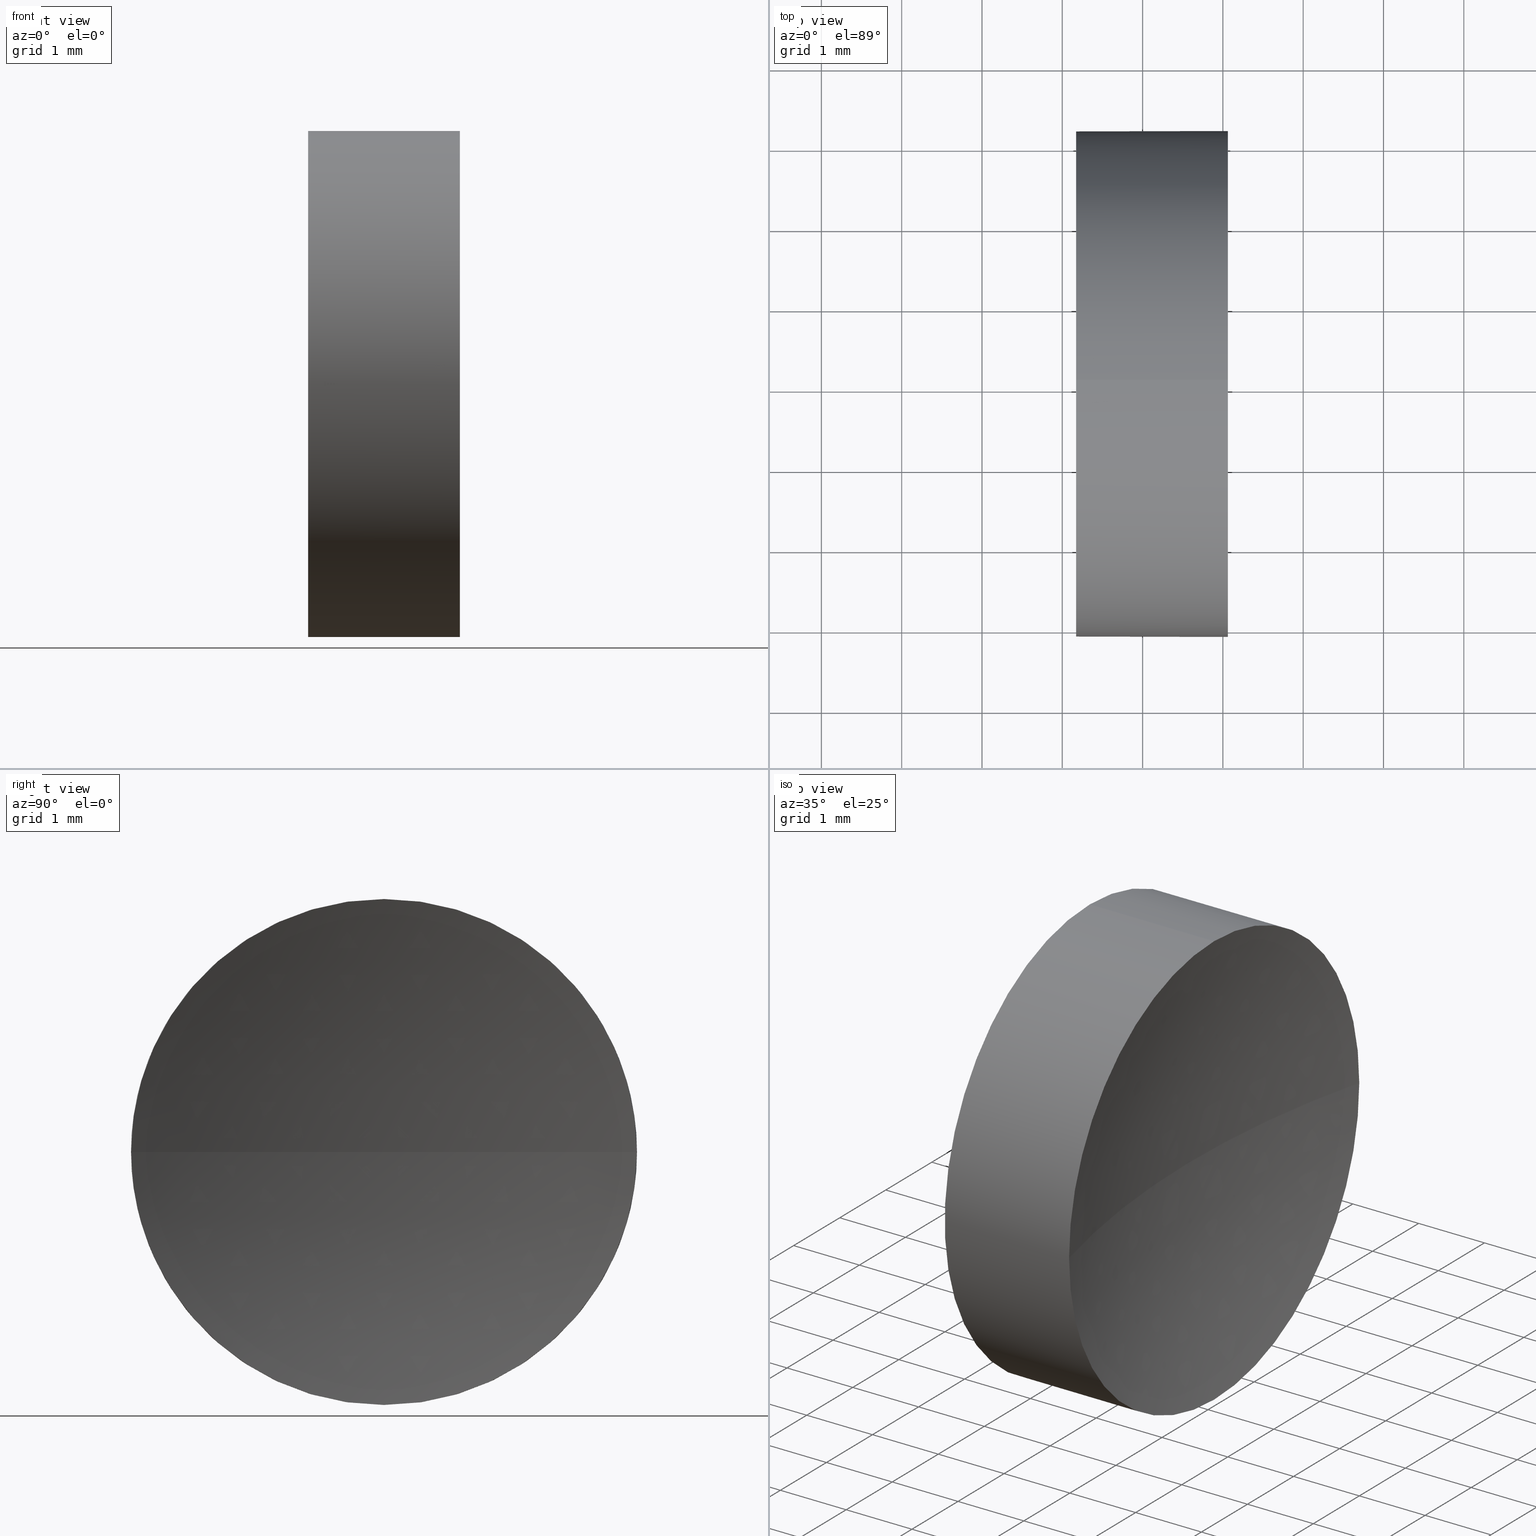
[diagram: canonical four-view strip — front | top / right | iso, engineering-drawing reading convention]
A machine part, canonical four-view strip (front | top / right | iso — engineering-drawing reading convention). The complete STEP part file that produces these views, byte-faithful:
ISO-10303-21;
HEADER;
FILE_DESCRIPTION (( 'STEP AP214' ),
    '1' );
FILE_NAME ('120008.STEP',
    '2019-06-14T03:14:25',
    ( '' ),
    ( '' ),
    'SwSTEP 2.0',
    'SolidWorks 2016',
    '' );
FILE_SCHEMA (( 'AUTOMOTIVE_DESIGN' ));
ENDSEC;

DATA;
#1 = DIRECTION ( 'NONE',  ( 0.0000000000000000000, 0.0000000000000000000, 1.000000000000000000 ) ) ;
#2 = COLOUR_RGB ( '',1.000000000000000000, 1.000000000000000000, 1.000000000000000000 ) ;
#3 = PRODUCT_RELATED_PRODUCT_CATEGORY ( 'part', '', ( #141 ) ) ;
#4 = EDGE_CURVE ( 'NONE', #68, #25, #99, .T. ) ;
#5 = EDGE_LOOP ( 'NONE', ( #165, #154 ) ) ;
#6 = ORIENTED_EDGE ( 'NONE', *, *, #122, .T. ) ;
#7 = STYLED_ITEM ( 'NONE', ( #16 ), #113 ) ;
#8 = EDGE_CURVE ( 'NONE', #166, #110, #151, .T. ) ;
#9 = EDGE_LOOP ( 'NONE', ( #155, #121, #6, #177, #66 ) ) ;
#10 = CARTESIAN_POINT ( 'NONE',  ( 22.17218947520228100, 13.04452057459747900, 0.0000000000000000000 ) ) ;
#11 = DIRECTION ( 'NONE',  ( 0.0000000000000000000, 0.0000000000000000000, 1.000000000000000000 ) ) ;
#12 = ORIENTED_EDGE ( 'NONE', *, *, #59, .T. ) ;
#13 = ADVANCED_FACE ( 'NONE', ( #70 ), #54, .T. ) ;
#14 = MECHANICAL_DESIGN_GEOMETRIC_PRESENTATION_REPRESENTATION (  '', ( #7 ), #98 ) ;
#15 = AXIS2_PLACEMENT_3D ( 'NONE', #44, #173, #45 ) ;
#16 = PRESENTATION_STYLE_ASSIGNMENT (( #38 ) ) ;
#17 = DIRECTION ( 'NONE',  ( 0.0000000000000000000, 0.0000000000000000000, 1.000000000000000000 ) ) ;
#18 = CIRCLE ( 'NONE', #72, 3.150000000000001700 ) ;
#19 = CARTESIAN_POINT ( 'NONE',  ( 24.06218947520228100, 13.04452057459747900, -3.150000000000001700 ) ) ;
#20 = CARTESIAN_POINT ( 'NONE',  ( 22.17218947520228100, 13.04452057459747900, -3.150000000000001700 ) ) ;
#21 = CARTESIAN_POINT ( 'NONE',  ( 24.06218947520228100, 13.04452057459747900, 0.0000000000000000000 ) ) ;
#22 =( NAMED_UNIT ( * ) SI_UNIT ( $, .STERADIAN. ) SOLID_ANGLE_UNIT ( ) );
#23 = ADVANCED_BREP_SHAPE_REPRESENTATION ( '120008', ( #113, #167 ), #51 ) ;
#24 = CIRCLE ( 'NONE', #26, 3.150000000000001700 ) ;
#25 = VERTEX_POINT ( 'NONE', #170 ) ;
#26 = AXIS2_PLACEMENT_3D ( 'NONE', #21, #82, #146 ) ;
#27 = ORIENTED_EDGE ( 'NONE', *, *, #4, .F. ) ;
#28 = CYLINDRICAL_SURFACE ( 'NONE', #150, 3.150000000000001700 ) ;
#29 = FACE_OUTER_BOUND ( 'NONE', #5, .T. ) ;
#30 = CIRCLE ( 'NONE', #15, 3.150000000000001700 ) ;
#31 = DIRECTION ( 'NONE',  ( -1.000000000000000000, -0.0000000000000000000, -0.0000000000000000000 ) ) ;
#32 = MECHANICAL_DESIGN_GEOMETRIC_PRESENTATION_REPRESENTATION (  '', ( #153 ), #128 ) ;
#33 = PRODUCT_CONTEXT ( 'NONE', #139, 'mechanical' ) ;
#34 = EDGE_CURVE ( 'NONE', #110, #85, #30, .T. ) ;
#35 = ORIENTED_EDGE ( 'NONE', *, *, #129, .F. ) ;
#36 = FILL_AREA_STYLE ('',( #126 ) ) ;
#37 = APPLICATION_PROTOCOL_DEFINITION ( 'draft international standard', 'automotive_design', 1998, #139 ) ;
#38 = SURFACE_STYLE_USAGE ( .BOTH. , #143 ) ;
#39 = CARTESIAN_POINT ( 'NONE',  ( 24.06218947520228100, 13.04452057459747900, 0.0000000000000000000 ) ) ;
#40 = ORIENTED_EDGE ( 'NONE', *, *, #8, .F. ) ;
#41 = ORIENTED_EDGE ( 'NONE', *, *, #4, .T. ) ;
#42 = FACE_OUTER_BOUND ( 'NONE', #178, .T. ) ;
#43 = DIRECTION ( 'NONE',  ( -1.000000000000000000, -0.0000000000000000000, -0.0000000000000000000 ) ) ;
#44 = CARTESIAN_POINT ( 'NONE',  ( 22.17218947520228100, 13.04452057459747900, 0.0000000000000000000 ) ) ;
#45 = DIRECTION ( 'NONE',  ( 0.0000000000000000000, 0.0000000000000000000, 1.000000000000000000 ) ) ;
#46 = PLANE ( 'NONE',  #64 ) ;
#47 = APPLICATION_CONTEXT ( 'automotive_design' ) ;
#48 = CARTESIAN_POINT ( 'NONE',  ( 24.06218947520228100, 13.04452057459747900, 0.0000000000000000000 ) ) ;
#49 = DIRECTION ( 'NONE',  ( 0.0000000000000000000, 0.0000000000000000000, 1.000000000000000000 ) ) ;
#50 = PRESENTATION_STYLE_ASSIGNMENT (( #123 ) ) ;
#51 =( GEOMETRIC_REPRESENTATION_CONTEXT ( 3 ) GLOBAL_UNCERTAINTY_ASSIGNED_CONTEXT ( ( #74 ) ) GLOBAL_UNIT_ASSIGNED_CONTEXT ( ( #94, #120, #22 ) ) REPRESENTATION_CONTEXT ( 'NONE', 'WORKASPACE' ) );
#52 = EDGE_CURVE ( 'NONE', #85, #110, #18, .T. ) ;
#53 = CIRCLE ( 'NONE', #71, 12.91615384615382700 ) ;
#54 = CYLINDRICAL_SURFACE ( 'NONE', #168, 3.150000000000001700 ) ;
#55 = FACE_OUTER_BOUND ( 'NONE', #114, .T. ) ;
#56 = UNCERTAINTY_MEASURE_WITH_UNIT (LENGTH_MEASURE( 1.000000000000000100E-005 ), #140, 'distance_accuracy_value', 'NONE');
#57 = VERTEX_POINT ( 'NONE', #19 ) ;
#58 =( NAMED_UNIT ( * ) SI_UNIT ( $, .STERADIAN. ) SOLID_ANGLE_UNIT ( ) );
#59 = EDGE_CURVE ( 'NONE', #57, #85, #62, .T. ) ;
#60 = DIRECTION ( 'NONE',  ( -1.000000000000000000, 0.0000000000000000000, 0.0000000000000000000 ) ) ;
#61 = FILL_AREA_STYLE_COLOUR ( '', #2 ) ;
#62 = LINE ( 'NONE', #135, #142 ) ;
#63 = DIRECTION ( 'NONE',  ( 0.0000000000000000000, 0.0000000000000000000, 1.000000000000000000 ) ) ;
#64 = AXIS2_PLACEMENT_3D ( 'NONE', #10, #186, #163 ) ;
#65 = CARTESIAN_POINT ( 'NONE',  ( 24.06218947520228100, 9.894520574597482500, 0.0000000000000000000 ) ) ;
#66 = ORIENTED_EDGE ( 'NONE', *, *, #52, .F. ) ;
#67 = ADVANCED_FACE ( 'NONE', ( #55 ), #134, .F. ) ;
#68 = VERTEX_POINT ( 'NONE', #171 ) ;
#69 = SPHERICAL_SURFACE ( 'NONE', #96, 12.91615384615382700 ) ;
#70 = FACE_OUTER_BOUND ( 'NONE', #9, .T. ) ;
#71 = AXIS2_PLACEMENT_3D ( 'NONE', #111, #185, #60 ) ;
#72 = AXIS2_PLACEMENT_3D ( 'NONE', #119, #31, #91 ) ;
#73 = ORIENTED_EDGE ( 'NONE', *, *, #89, .F. ) ;
#74 = UNCERTAINTY_MEASURE_WITH_UNIT (LENGTH_MEASURE( 1.000000000000000100E-005 ), #94, 'distance_accuracy_value', 'NONE');
#75 = EDGE_LOOP ( 'NONE', ( #101, #12, #136, #40, #183 ) ) ;
#76 = CARTESIAN_POINT ( 'NONE',  ( 36.58834332135611300, 13.04452057459747900, 0.0000000000000000000 ) ) ;
#77 = CARTESIAN_POINT ( 'NONE',  ( 0.0000000000000000000, 0.0000000000000000000, 0.0000000000000000000 ) ) ;
#78 = DIRECTION ( 'NONE',  ( 0.0000000000000000000, -1.000000000000000000, 0.0000000000000000000 ) ) ;
#79 = PRODUCT_DEFINITION_CONTEXT ( 'detailed design', #47, 'design' ) ;
#80 = SURFACE_SIDE_STYLE ('',( #105 ) ) ;
#81 = DIRECTION ( 'NONE',  ( -1.000000000000000000, -0.0000000000000000000, -0.0000000000000000000 ) ) ;
#82 = DIRECTION ( 'NONE',  ( -1.000000000000000000, -0.0000000000000000000, -0.0000000000000000000 ) ) ;
#83 = ADVANCED_FACE ( 'NONE', ( #118 ), #28, .T. ) ;
#84 = ORIENTED_EDGE ( 'NONE', *, *, #122, .F. ) ;
#85 = VERTEX_POINT ( 'NONE', #20 ) ;
#86 = UNCERTAINTY_MEASURE_WITH_UNIT (LENGTH_MEASURE( 1.000000000000000100E-005 ), #93, 'distance_accuracy_value', 'NONE');
#87 = CARTESIAN_POINT ( 'NONE',  ( 21.22493055706841100, 13.04452057459747900, 0.0000000000000000000 ) ) ;
#88 = CARTESIAN_POINT ( 'NONE',  ( 22.17218947520228100, 13.04452057459747900, 3.150000000000001700 ) ) ;
#89 = EDGE_CURVE ( 'NONE', #68, #57, #100, .T. ) ;
#90 = SHAPE_DEFINITION_REPRESENTATION ( #144, #23 ) ;
#91 = DIRECTION ( 'NONE',  ( 0.0000000000000000000, 0.0000000000000000000, 1.000000000000000000 ) ) ;
#92 = APPLICATION_PROTOCOL_DEFINITION ( 'draft international standard', 'automotive_design', 1998, #47 ) ;
#93 =( LENGTH_UNIT ( ) NAMED_UNIT ( * ) SI_UNIT ( .MILLI., .METRE. ) );
#94 =( LENGTH_UNIT ( ) NAMED_UNIT ( * ) SI_UNIT ( .MILLI., .METRE. ) );
#95 = DIRECTION ( 'NONE',  ( -1.000000000000000000, -0.0000000000000000000, -0.0000000000000000000 ) ) ;
#96 = AXIS2_PLACEMENT_3D ( 'NONE', #175, #1, #78 ) ;
#97 = CARTESIAN_POINT ( 'NONE',  ( 24.06218947520228100, 13.04452057459747900, 0.0000000000000000000 ) ) ;
#98 =( GEOMETRIC_REPRESENTATION_CONTEXT ( 3 ) GLOBAL_UNCERTAINTY_ASSIGNED_CONTEXT ( ( #86 ) ) GLOBAL_UNIT_ASSIGNED_CONTEXT ( ( #93, #125, #112 ) ) REPRESENTATION_CONTEXT ( 'NONE', 'WORKASPACE' ) );
#99 = CIRCLE ( 'NONE', #161, 12.91615384615382700 ) ;
#100 = CIRCLE ( 'NONE', #133, 3.150000000000001700 ) ;
#101 = ORIENTED_EDGE ( 'NONE', *, *, #89, .T. ) ;
#102 = AXIS2_PLACEMENT_3D ( 'NONE', #97, #127, #49 ) ;
#103 = AXIS2_PLACEMENT_3D ( 'NONE', #124, #157, #159 ) ;
#104 = VECTOR ( 'NONE', #43, 1000.000000000000000 ) ;
#105 = SURFACE_STYLE_FILL_AREA ( #36 ) ;
#106 = AXIS2_PLACEMENT_3D ( 'NONE', #48, #95, #63 ) ;
#107 = ORIENTED_EDGE ( 'NONE', *, *, #182, .T. ) ;
#108 = DIRECTION ( 'NONE',  ( 0.0000000000000000000, -1.000000000000000000, -1.224646799147353200E-016 ) ) ;
#109 = DIRECTION ( 'NONE',  ( 1.000000000000000000, 0.0000000000000000000, 0.0000000000000000000 ) ) ;
#110 = VERTEX_POINT ( 'NONE', #88 ) ;
#111 = CARTESIAN_POINT ( 'NONE',  ( 36.58834332135611300, 13.04452057459747900, 0.0000000000000000000 ) ) ;
#112 =( NAMED_UNIT ( * ) SI_UNIT ( $, .STERADIAN. ) SOLID_ANGLE_UNIT ( ) );
#113 = MANIFOLD_SOLID_BREP ( '��ת1', #147 ) ;
#114 = EDGE_LOOP ( 'NONE', ( #73, #41, #180, #35 ) ) ;
#115 = ORIENTED_EDGE ( 'NONE', *, *, #117, .F. ) ;
#116 = PRESENTATION_LAYER_ASSIGNMENT (  '', '', ( #153 ) ) ;
#117 = EDGE_CURVE ( 'NONE', #166, #68, #24, .T. ) ;
#118 = FACE_OUTER_BOUND ( 'NONE', #75, .T. ) ;
#119 = CARTESIAN_POINT ( 'NONE',  ( 22.17218947520228100, 13.04452057459747900, 0.0000000000000000000 ) ) ;
#120 =( NAMED_UNIT ( * ) PLANE_ANGLE_UNIT ( ) SI_UNIT ( $, .RADIAN. ) );
#121 = ORIENTED_EDGE ( 'NONE', *, *, #129, .T. ) ;
#122 = EDGE_CURVE ( 'NONE', #130, #166, #179, .T. ) ;
#123 = SURFACE_STYLE_USAGE ( .BOTH. , #80 ) ;
#124 = CARTESIAN_POINT ( 'NONE',  ( 36.58834332135611300, 13.04452057459747900, 0.0000000000000000000 ) ) ;
#125 =( NAMED_UNIT ( * ) PLANE_ANGLE_UNIT ( ) SI_UNIT ( $, .RADIAN. ) );
#126 = FILL_AREA_STYLE_COLOUR ( '', #131 ) ;
#127 = DIRECTION ( 'NONE',  ( -1.000000000000000000, -0.0000000000000000000, -0.0000000000000000000 ) ) ;
#128 =( GEOMETRIC_REPRESENTATION_CONTEXT ( 3 ) GLOBAL_UNCERTAINTY_ASSIGNED_CONTEXT ( ( #56 ) ) GLOBAL_UNIT_ASSIGNED_CONTEXT ( ( #140, #184, #58 ) ) REPRESENTATION_CONTEXT ( 'NONE', 'WORKASPACE' ) );
#129 = EDGE_CURVE ( 'NONE', #57, #130, #132, .T. ) ;
#130 = VERTEX_POINT ( 'NONE', #65 ) ;
#131 = COLOUR_RGB ( '',1.000000000000000000, 1.000000000000000000, 1.000000000000000000 ) ;
#132 = CIRCLE ( 'NONE', #102, 3.150000000000001700 ) ;
#133 = AXIS2_PLACEMENT_3D ( 'NONE', #39, #81, #11 ) ;
#134 = SPHERICAL_SURFACE ( 'NONE', #103, 12.91615384615382700 ) ;
#135 = CARTESIAN_POINT ( 'NONE',  ( 21.22493055706841100, 13.04452057459747900, -3.150000000000001700 ) ) ;
#136 = ORIENTED_EDGE ( 'NONE', *, *, #34, .F. ) ;
#137 = DIRECTION ( 'NONE',  ( 0.0000000000000000000, 0.0000000000000000000, 1.000000000000000000 ) ) ;
#138 = DIRECTION ( 'NONE',  ( -1.000000000000000000, -0.0000000000000000000, -0.0000000000000000000 ) ) ;
#139 = APPLICATION_CONTEXT ( 'automotive_design' ) ;
#140 =( LENGTH_UNIT ( ) NAMED_UNIT ( * ) SI_UNIT ( .MILLI., .METRE. ) );
#141 = PRODUCT ( '120008', '120008', '', ( #33 ) ) ;
#142 = VECTOR ( 'NONE', #138, 1000.000000000000000 ) ;
#143 = SURFACE_SIDE_STYLE ('',( #152 ) ) ;
#144 = PRODUCT_DEFINITION_SHAPE ( 'NONE', 'NONE',  #148 ) ;
#145 = CARTESIAN_POINT ( 'NONE',  ( 24.06218947520228100, 13.04452057459747900, 3.150000000000001700 ) ) ;
#146 = DIRECTION ( 'NONE',  ( 0.0000000000000000000, 0.0000000000000000000, 1.000000000000000000 ) ) ;
#147 = CLOSED_SHELL ( 'NONE', ( #83, #67, #164, #13, #149 ) ) ;
#148 = PRODUCT_DEFINITION ( 'δ֪', '', #158, #79 ) ;
#149 = ADVANCED_FACE ( 'NONE', ( #29 ), #46, .F. ) ;
#150 = AXIS2_PLACEMENT_3D ( 'NONE', #156, #160, #137 ) ;
#151 = LINE ( 'NONE', #162, #104 ) ;
#152 = SURFACE_STYLE_FILL_AREA ( #174 ) ;
#153 = STYLED_ITEM ( 'NONE', ( #50 ), #23 ) ;
#154 = ORIENTED_EDGE ( 'NONE', *, *, #52, .T. ) ;
#155 = ORIENTED_EDGE ( 'NONE', *, *, #59, .F. ) ;
#156 = CARTESIAN_POINT ( 'NONE',  ( 21.22493055706841100, 13.04452057459747900, 0.0000000000000000000 ) ) ;
#157 = DIRECTION ( 'NONE',  ( 0.0000000000000000000, 0.0000000000000000000, 1.000000000000000000 ) ) ;
#158 = PRODUCT_DEFINITION_FORMATION_WITH_SPECIFIED_SOURCE ( '�κ�', '', #141, .NOT_KNOWN. ) ;
#159 = DIRECTION ( 'NONE',  ( 0.0000000000000000000, -1.000000000000000000, 0.0000000000000000000 ) ) ;
#160 = DIRECTION ( 'NONE',  ( -1.000000000000000000, -0.0000000000000000000, -0.0000000000000000000 ) ) ;
#161 = AXIS2_PLACEMENT_3D ( 'NONE', #76, #169, #108 ) ;
#162 = CARTESIAN_POINT ( 'NONE',  ( 21.22493055706841100, 13.04452057459747900, 3.150000000000001700 ) ) ;
#163 = DIRECTION ( 'NONE',  ( 0.0000000000000000000, 0.0000000000000000000, -1.000000000000000000 ) ) ;
#164 = ADVANCED_FACE ( 'NONE', ( #42 ), #69, .F. ) ;
#165 = ORIENTED_EDGE ( 'NONE', *, *, #34, .T. ) ;
#166 = VERTEX_POINT ( 'NONE', #145 ) ;
#167 = AXIS2_PLACEMENT_3D ( 'NONE', #77, #172, #109 ) ;
#168 = AXIS2_PLACEMENT_3D ( 'NONE', #87, #181, #17 ) ;
#169 = DIRECTION ( 'NONE',  ( 0.0000000000000000000, -1.224646799147353200E-016, 1.000000000000000000 ) ) ;
#170 = CARTESIAN_POINT ( 'NONE',  ( 23.67218947520228400, 13.04452057459747900, 0.0000000000000000000 ) ) ;
#171 = CARTESIAN_POINT ( 'NONE',  ( 24.06218947520228100, 16.19452057459747600, 3.857637417314158300E-016 ) ) ;
#172 = DIRECTION ( 'NONE',  ( 0.0000000000000000000, 0.0000000000000000000, 1.000000000000000000 ) ) ;
#173 = DIRECTION ( 'NONE',  ( -1.000000000000000000, -0.0000000000000000000, -0.0000000000000000000 ) ) ;
#174 = FILL_AREA_STYLE ('',( #61 ) ) ;
#175 = CARTESIAN_POINT ( 'NONE',  ( 36.58834332135611300, 13.04452057459747900, 0.0000000000000000000 ) ) ;
#176 = PRESENTATION_LAYER_ASSIGNMENT (  '', '', ( #7 ) ) ;
#177 = ORIENTED_EDGE ( 'NONE', *, *, #8, .T. ) ;
#178 = EDGE_LOOP ( 'NONE', ( #27, #115, #84, #107 ) ) ;
#179 = CIRCLE ( 'NONE', #106, 3.150000000000001700 ) ;
#180 = ORIENTED_EDGE ( 'NONE', *, *, #182, .F. ) ;
#181 = DIRECTION ( 'NONE',  ( -1.000000000000000000, -0.0000000000000000000, -0.0000000000000000000 ) ) ;
#182 = EDGE_CURVE ( 'NONE', #130, #25, #53, .T. ) ;
#183 = ORIENTED_EDGE ( 'NONE', *, *, #117, .T. ) ;
#184 =( NAMED_UNIT ( * ) PLANE_ANGLE_UNIT ( ) SI_UNIT ( $, .RADIAN. ) );
#185 = DIRECTION ( 'NONE',  ( 0.0000000000000000000, 0.0000000000000000000, -1.000000000000000000 ) ) ;
#186 = DIRECTION ( 'NONE',  ( 1.000000000000000000, 0.0000000000000000000, 0.0000000000000000000 ) ) ;
ENDSEC;
END-ISO-10303-21;
